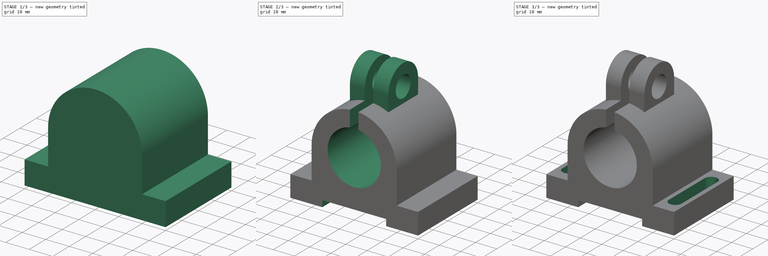
[diagram: build sequence overview — one tinted view per stage of 3, left to right]
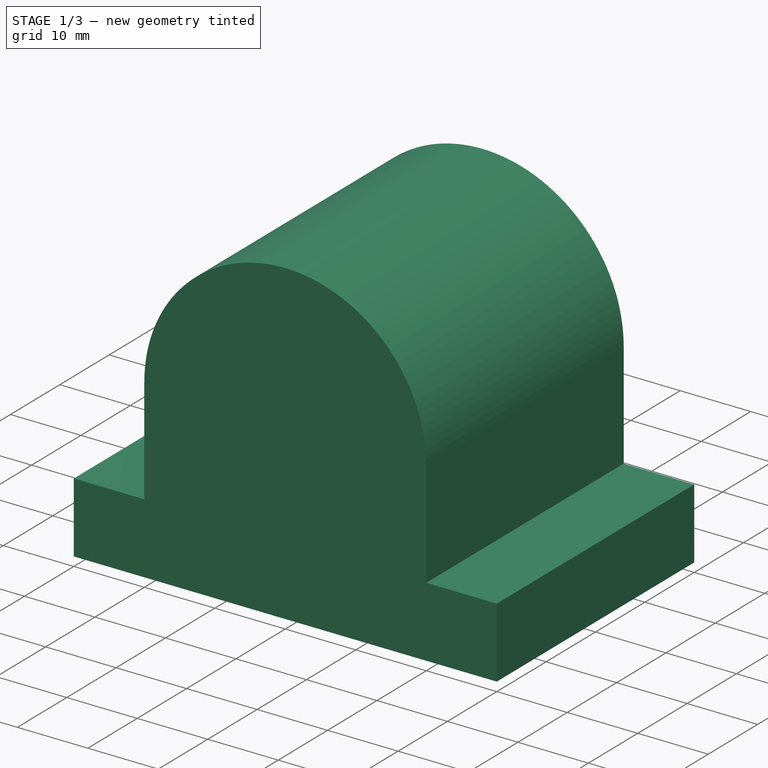
[diagram: stage 1 of 3 — iso view after this stage's code; geometry added in this stage tinted green]
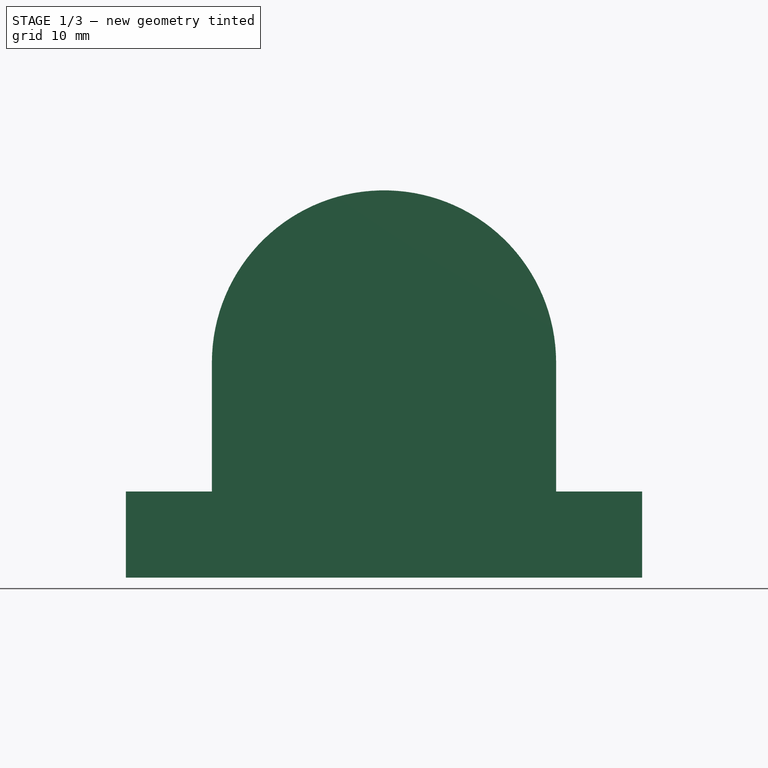
[diagram: stage 1 of 3 — front view after this stage's code; geometry added in this stage tinted green]
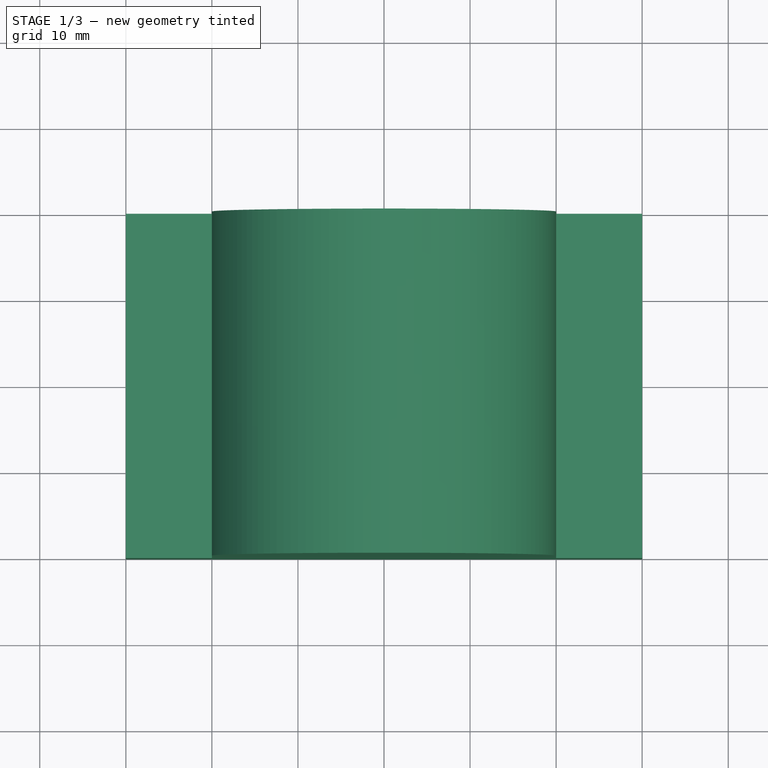
[diagram: stage 1 of 3 — top view after this stage's code; geometry added in this stage tinted green]
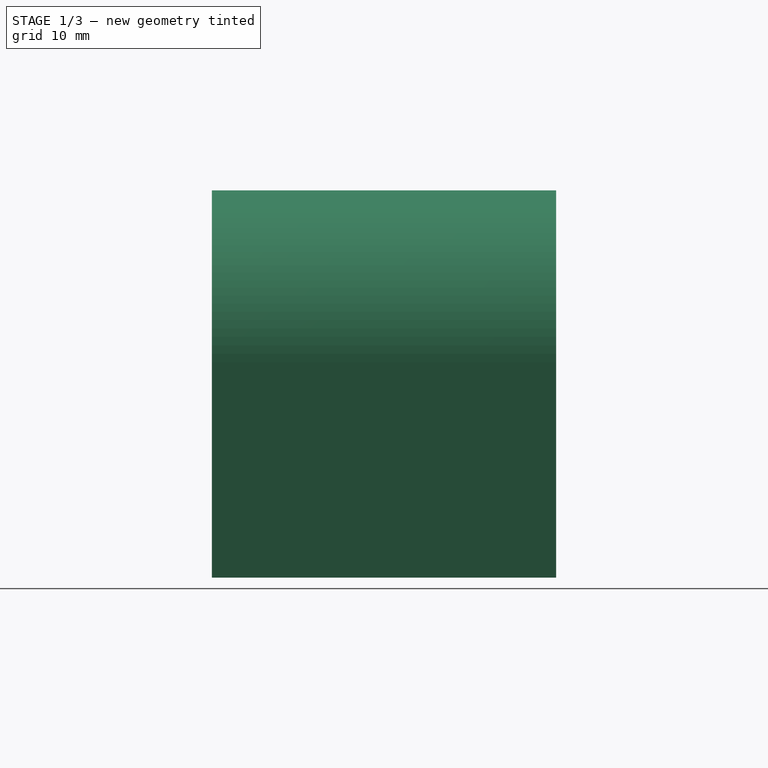
[diagram: stage 1 of 3 — right view after this stage's code; geometry added in this stage tinted green]
FCSTD DOCUMENT  (FreeCAD 0.18R4 (GitTag))
Label: project2
License: All rights reserved
LicenseURL: http://en.wikipedia.org/wiki/All_rights_reserved
objects: Sketcher::SketchObject×6, PartDesign::Pad×3, PartDesign::Pocket×3, PartDesign::Mirrored×1, PartDesign::Body×1
note: 20 computed .brp shape members not serialized (recipe doc carries the construction recipe); baked Part::Feature solids carry a one-line shape summary decoded from their .brp

FEATURE [Sketcher::SketchObject] Sketch
  MapMode = 5
  Support = -> [XY_Plane]
  sketch-geometry (4):
    g0: LineSegment StartX=-30 StartY=20 StartZ=0 EndX=30 EndY=20 EndZ=0
    g1: LineSegment StartX=30 StartY=20 StartZ=0 EndX=30 EndY=-20 EndZ=0
    g2: LineSegment StartX=30 StartY=-20 StartZ=0 EndX=-30 EndY=-20 EndZ=0
    g3: LineSegment StartX=-30 StartY=-20 StartZ=0 EndX=-30 EndY=20 EndZ=0
  constraints (10):
    c: Coincident(g0,g1)
    c: Coincident(g1,g2)
    c: Coincident(g2,g3)
    c: Coincident(g3,g0)
    c: Horizontal(g2)
    c: Vertical(g1)
    c: DistanceX(g0,g0) = 60
    c: DistanceY(g1,g0) = 40
    c: Symmetric(g0,g0,g-2)
    c: Symmetric(g2,g0,g-1)
FEATURE [PartDesign::Pad] Pad
  Length = 10
  Length2 = 100
  Profile = -> Sketch
  Type = 0
FEATURE [Sketcher::SketchObject] Sketch001
  MapMode = 5
  Placement = pos=(0,0,0) rot=(1,0,0;1.5708rad)
  Support = -> [XZ_Plane]
  sketch-geometry (4):
    g0: LineSegment StartX=-20 StartY=10 StartZ=0 EndX=-20 EndY=25 EndZ=0
    g1: ArcOfCircle CenterX=0 CenterY=25 CenterZ=0 NormalX=0 NormalY=0 NormalZ=1 AngleXU=0 Radius=20 StartAngle=4e-16 EndAngle=3.14159
    g2: LineSegment StartX=20 StartY=25 StartZ=0 EndX=20 EndY=10 EndZ=0
    g3: LineSegment StartX=-20 StartY=10 StartZ=0 EndX=20 EndY=10 EndZ=0
  constraints (11):
    c: Vertical(g0)
    c: Vertical(g2)
    c: Tangent(g0,g1) = 1.5708
    c: PointOnObject(g1,g-2)
    c: Tangent(g1,g2) = 1.5708
    c: Coincident(g2,g3)
    c: Coincident(g0,g3)
    c: Horizontal(g3)
    c: Radius(g1) = 20
    c: DistanceY(g2,g2) = 15
    c: DistanceY(g-1,g1) = 25
FEATURE [PartDesign::Pad] Pad001
  BaseFeature = -> Pad
  Length = 40
  Length2 = 100
  Midplane = true
  Profile = -> Sketch001
  Type = 0
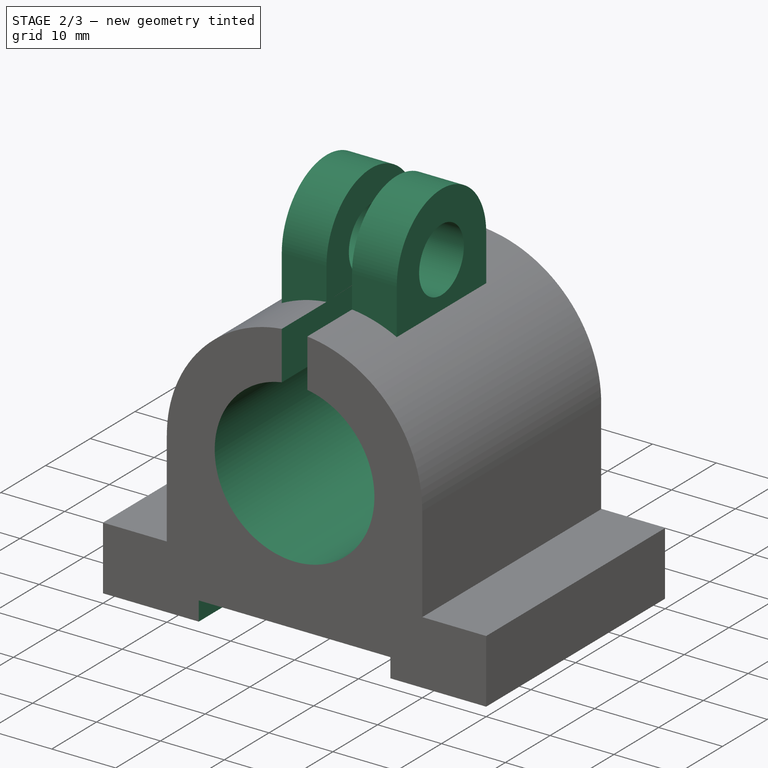
[diagram: stage 2 of 3 — iso view after this stage's code; geometry added in this stage tinted green]
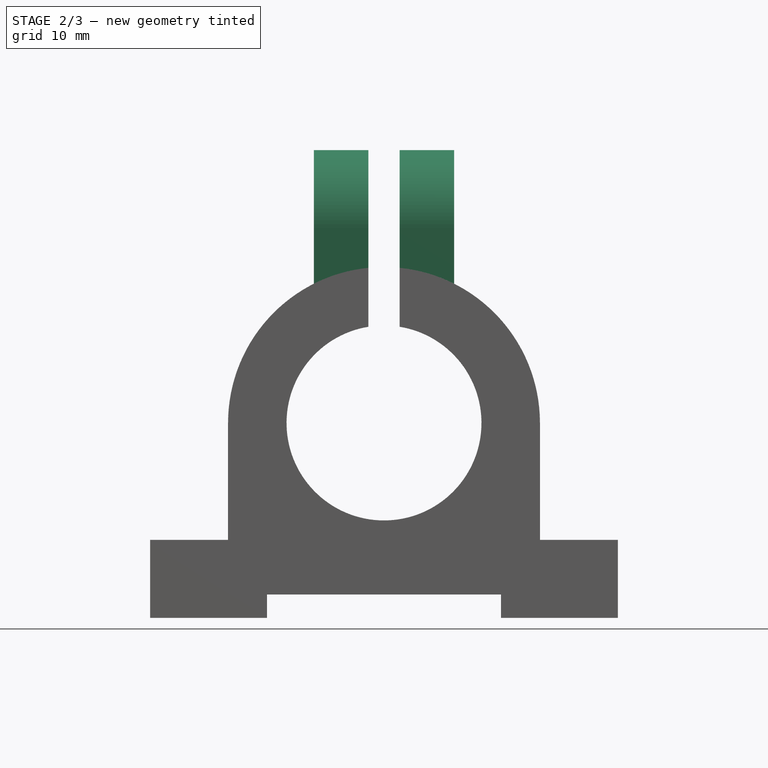
[diagram: stage 2 of 3 — front view after this stage's code; geometry added in this stage tinted green]
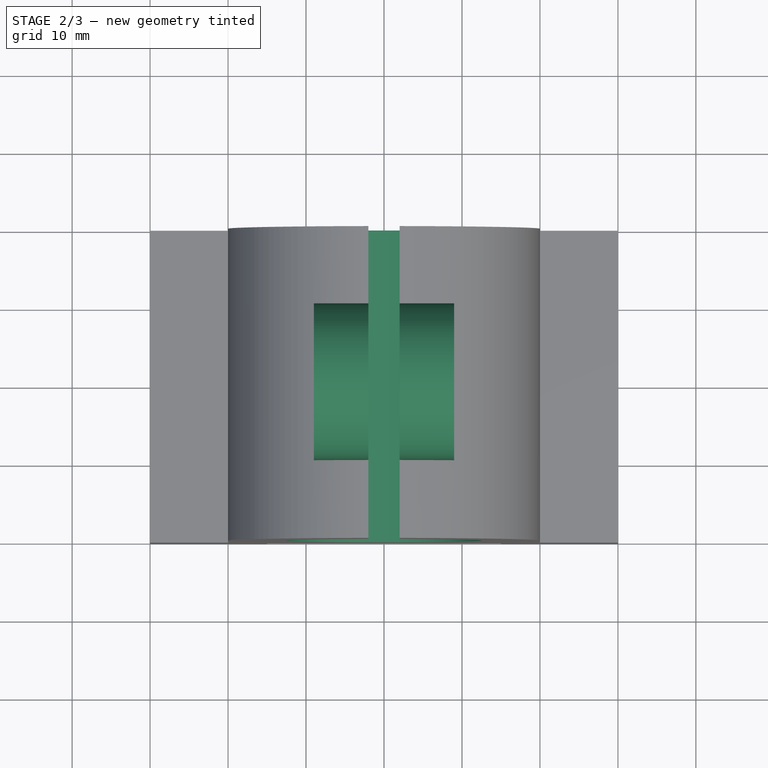
[diagram: stage 2 of 3 — top view after this stage's code; geometry added in this stage tinted green]
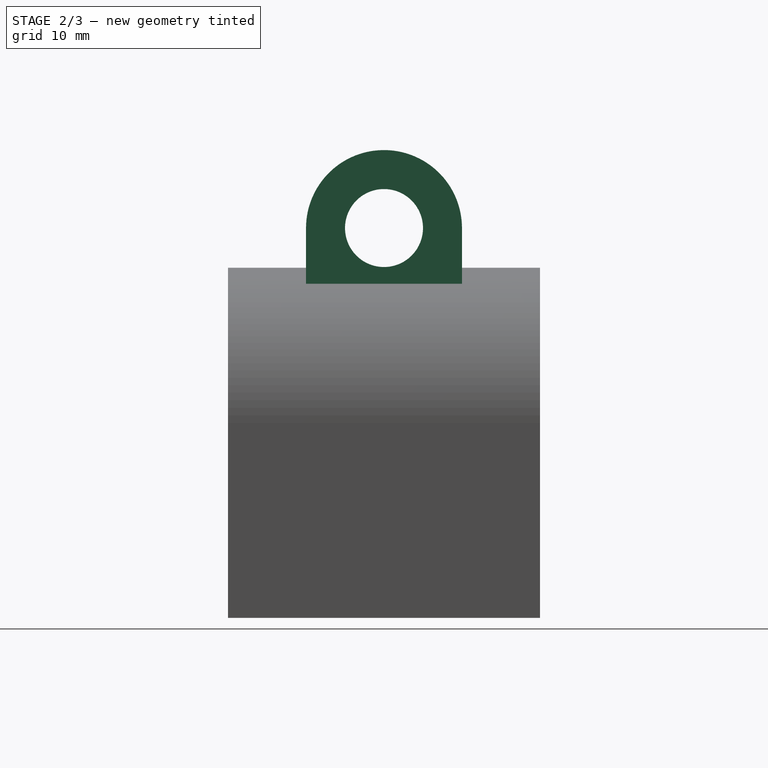
[diagram: stage 2 of 3 — right view after this stage's code; geometry added in this stage tinted green]
FEATURE [Sketcher::SketchObject] Sketch002
  MapMode = 5
  Placement = pos=(0,0,0) rot=(0.57735,0.57735,0.57735;2.0944rad)
  Support = -> [YZ_Plane]
  sketch-geometry (5):
    g0: LineSegment StartX=-10 StartY=30 StartZ=0 EndX=-10 EndY=50 EndZ=0
    g1: ArcOfCircle CenterX=0 CenterY=50 CenterZ=0 NormalX=0 NormalY=0 NormalZ=1 AngleXU=0 Radius=10 StartAngle=6.28318 EndAngle=9.42478
    g2: LineSegment StartX=10 StartY=50 StartZ=0 EndX=10 EndY=30 EndZ=0
    g3: LineSegment StartX=10 StartY=30 StartZ=0 EndX=-10 EndY=30 EndZ=0
    g4: Circle CenterX=0 CenterY=50 CenterZ=0 NormalX=0 NormalY=0 NormalZ=1 AngleXU=0 Radius=5
  constraints (14):
    c: Tangent(g0,g1) = 1.5708
    c: Coincident(g1,g2)
    c: Coincident(g2,g3)
    c: Vertical(g0)
    c: Vertical(g2)
    c: Horizontal(g3)
    c: PointOnObject(g1,g-2)
    c: Coincident(g0,g3)
    c: Radius(g4) = 5
    c: Radius(g1) = 10
    c: DistanceY(g-1,g1) = 50
    c: Coincident(g4,g1)
    c: DistanceX(g3,g3) = 20
    c: DistanceY(g2,g2) = 20
FEATURE [PartDesign::Pad] Pad002
  BaseFeature = -> Pad001
  Length = 18
  Length2 = 100
  Midplane = true
  Profile = -> Sketch002
  Type = 0
FEATURE [Sketcher::SketchObject] Sketch003
  MapMode = 5
  Placement = pos=(0,0,0) rot=(1,0,0;1.5708rad)
  Support = -> [XZ_Plane]
  sketch-geometry (4):
    g0: ArcOfCircle CenterX=0 CenterY=25 CenterZ=0 NormalX=0 NormalY=0 NormalZ=1 AngleXU=0 Radius=12.5 StartAngle=1.73149 EndAngle=7.69329
    g1: LineSegment StartX=-2 StartY=70.819 StartZ=0 EndX=2 EndY=70.819 EndZ=0
    g2: LineSegment StartX=2 StartY=70.819 StartZ=0 EndX=2 EndY=37.339 EndZ=0
    g3: LineSegment StartX=-2 StartY=37.339 StartZ=0 EndX=-2 EndY=70.819 EndZ=0
  constraints (12):
    c: Diameter(g0) = 25
    c: PointOnObject(g0,g-2)
    c: DistanceY(g-1,g0) = 25
    c: Coincident(g1,g2)
    c: Coincident(g3,g1)
    c: Vertical(g2)
    c: Vertical(g3)
    c: DistanceX(g1,g1) = 4
    c: Coincident(g0,g3)
    c: Coincident(g0,g2)
    c: Symmetric(g1,g1,g-2)
    c: DistanceY(g3,g3) = 33.48
FEATURE [PartDesign::Pocket] Pocket
  BaseFeature = -> Pad002
  Length = 5
  Length2 = 100
  Midplane = true
  Profile = -> Sketch003
  Type = 1
FEATURE [Sketcher::SketchObject] Sketch004
  MapMode = 5
  Placement = pos=(0,0,0) rot=(1,0,0;1.5708rad)
  Support = -> [XZ_Plane]
  sketch-geometry (4):
    g0: LineSegment StartX=-15 StartY=0 StartZ=0 EndX=15 EndY=0 EndZ=0
    g1: LineSegment StartX=15 StartY=0 StartZ=0 EndX=15 EndY=3 EndZ=0
    g2: LineSegment StartX=15 StartY=3 StartZ=0 EndX=-15 EndY=3 EndZ=0
    g3: LineSegment StartX=-15 StartY=3 StartZ=0 EndX=-15 EndY=0 EndZ=0
  constraints (11):
    c: Coincident(g0,g1)
    c: Coincident(g1,g2)
    c: Coincident(g2,g3)
    c: Coincident(g3,g0)
    c: Horizontal(g0)
    c: Horizontal(g2)
    c: Vertical(g1)
    c: Vertical(g3)
    c: Symmetric(g0,g0,g-1)
    c: DistanceX(g2,g2) = 30
    c: DistanceY(g3,g3) = 3
FEATURE [PartDesign::Pocket] Pocket001
  BaseFeature = -> Pocket
  Length = 5
  Length2 = 100
  Midplane = true
  Profile = -> Sketch004
  Type = 1
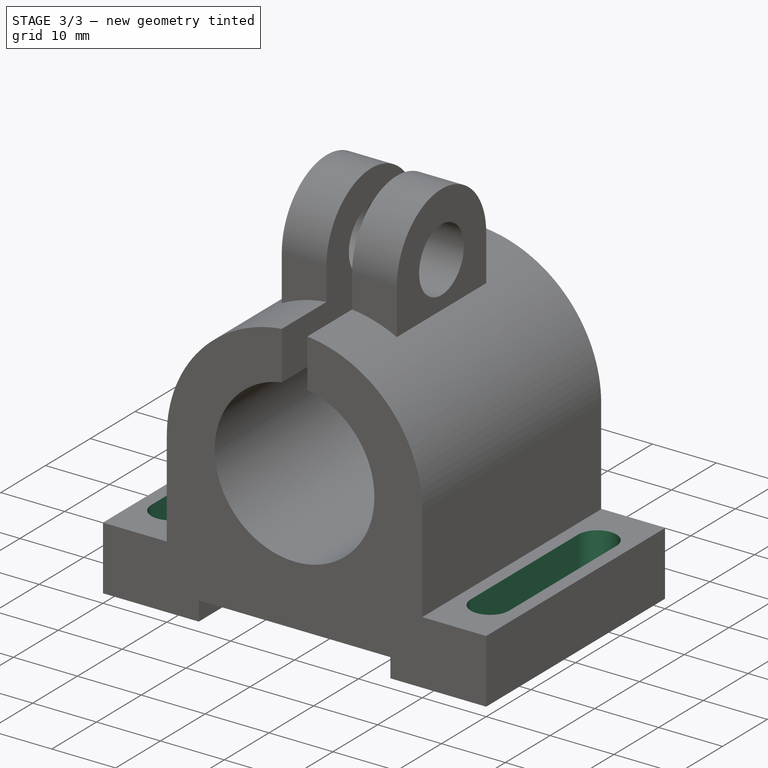
[diagram: stage 3 of 3 — iso view after this stage's code; geometry added in this stage tinted green]
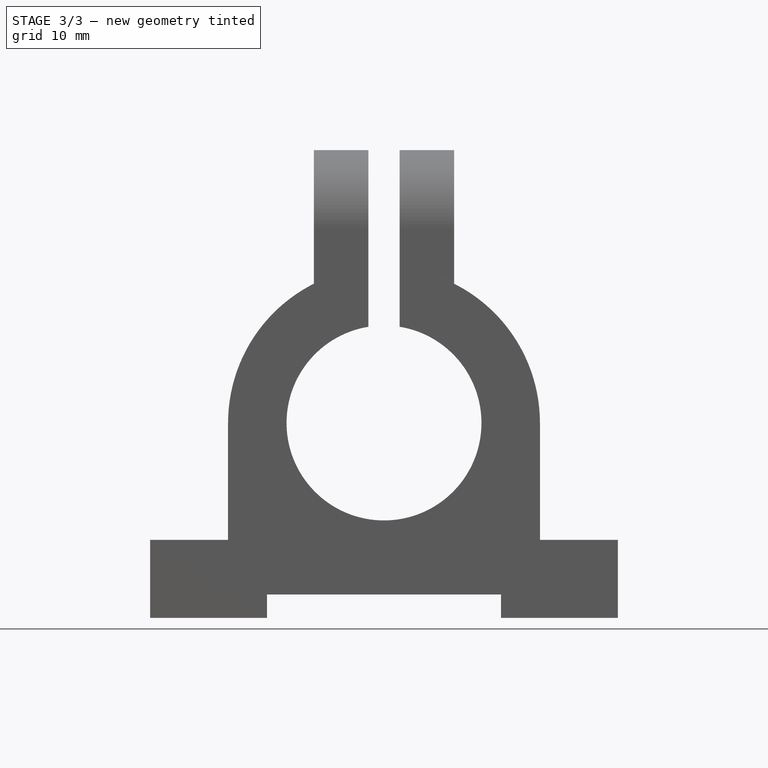
[diagram: stage 3 of 3 — front view after this stage's code; geometry added in this stage tinted green]
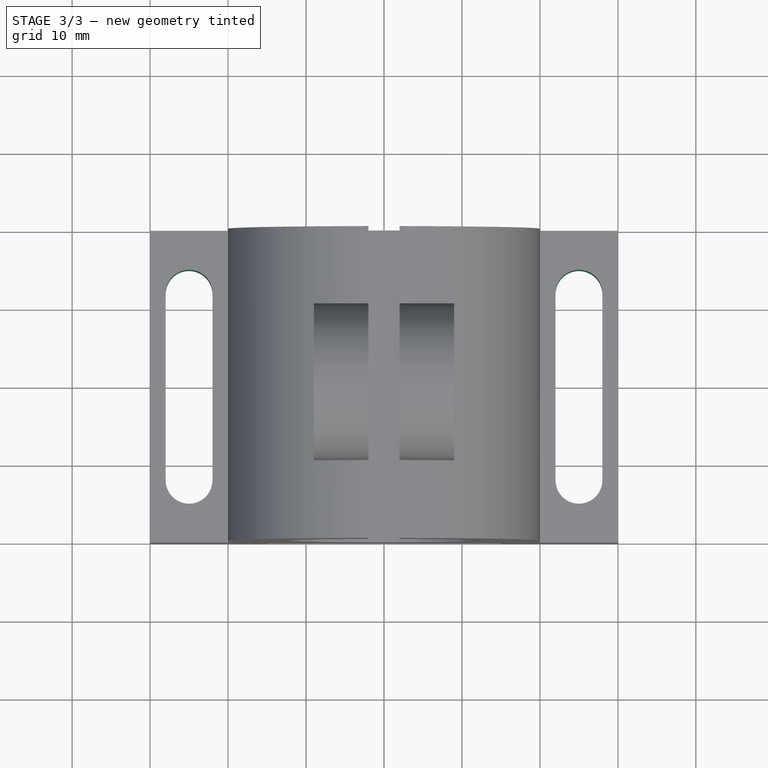
[diagram: stage 3 of 3 — top view after this stage's code; geometry added in this stage tinted green]
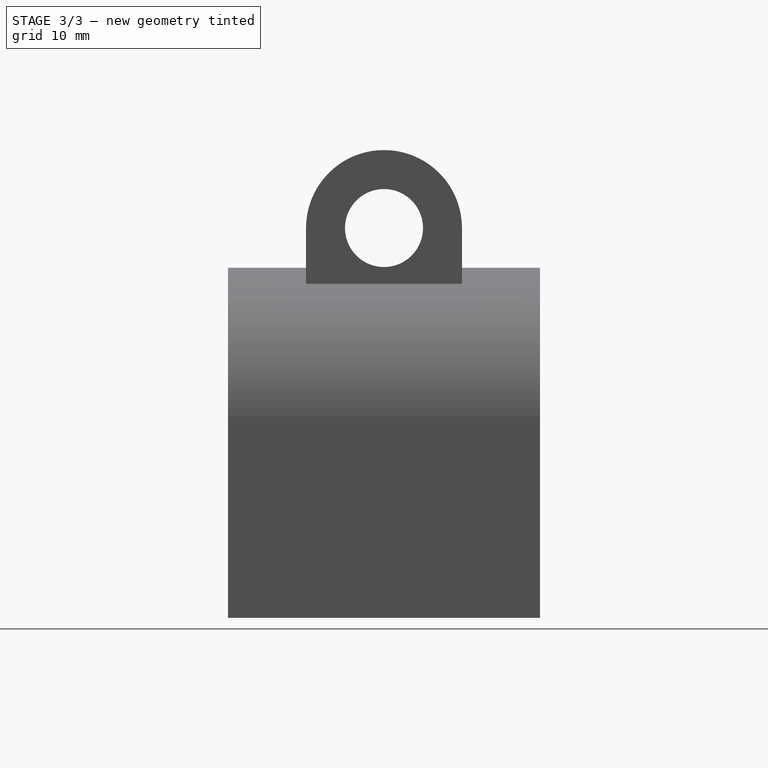
[diagram: stage 3 of 3 — right view after this stage's code; geometry added in this stage tinted green]
FEATURE [Sketcher::SketchObject] Sketch005
  MapMode = 5
  Support = -> [XY_Plane]
  sketch-geometry (4):
    g0: ArcOfCircle CenterX=25 CenterY=12 CenterZ=0 NormalX=0 NormalY=0 NormalZ=1 AngleXU=0 Radius=3 StartAngle=3e-16 EndAngle=3.14159
    g1: ArcOfCircle CenterX=25 CenterY=-12 CenterZ=0 NormalX=0 NormalY=0 NormalZ=1 AngleXU=0 Radius=3 StartAngle=3.14159 EndAngle=6.28319
    g2: LineSegment StartX=22 StartY=12 StartZ=0 EndX=22 EndY=-12 EndZ=0
    g3: LineSegment StartX=28 StartY=12 StartZ=0 EndX=28 EndY=-12 EndZ=0
  constraints (9):
    c: Tangent(g0,g3) = 1.5708
    c: Tangent(g0,g2) = -1.5708
    c: Tangent(g2,g1) = -1.5708
    c: Tangent(g3,g1) = 1.5708
    c: Equal(g0,g1)
    c: DistanceY(g3,g3) = 24
    c: Radius(g0) = 3
    c: Symmetric(g0,g1,g-1)
    c: DistanceX(g-2,g0) = 25
FEATURE [PartDesign::Pocket] Pocket002
  BaseFeature = -> Pocket001
  Length = 5
  Length2 = 100
  Midplane = true
  Profile = -> Sketch005
  Type = 1
FEATURE [PartDesign::Mirrored] Mirrored
  BaseFeature = -> Pocket002
  MirrorPlane = -> Sketch005 [V_Axis]
  Originals = -> [Pocket002]
FEATURE [PartDesign::Body] Body
  Group = -> [Sketch,Pad,Sketch001,Pad001,Sketch002,Pad002,Sketch003,Pocket,Sketch004,Pocket001,Sketch005,Pocket002,Mirrored]
  Origin = -> Origin
  Tip = -> Mirrored
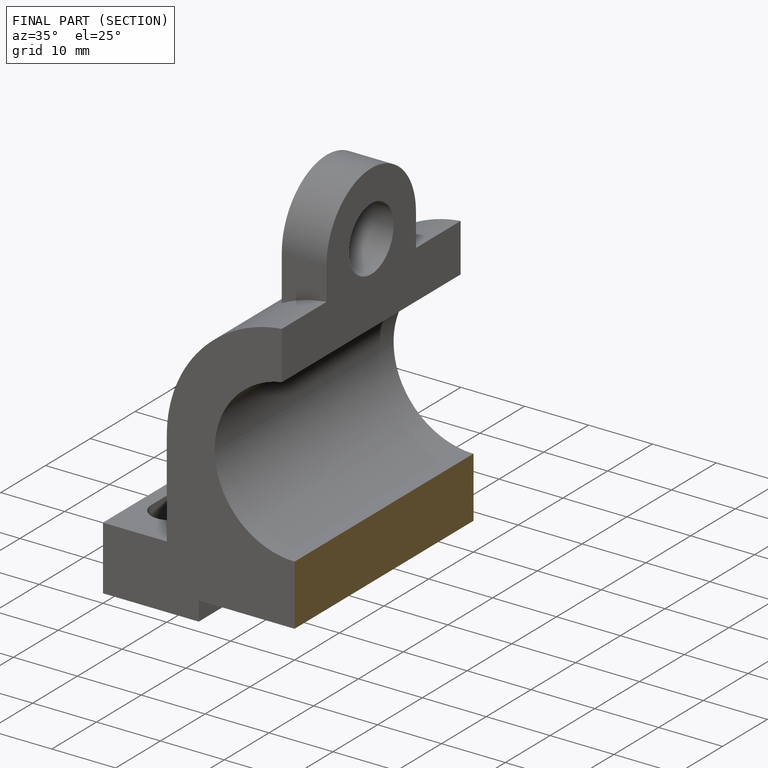
[diagram: finished part — half-section view (interior)]
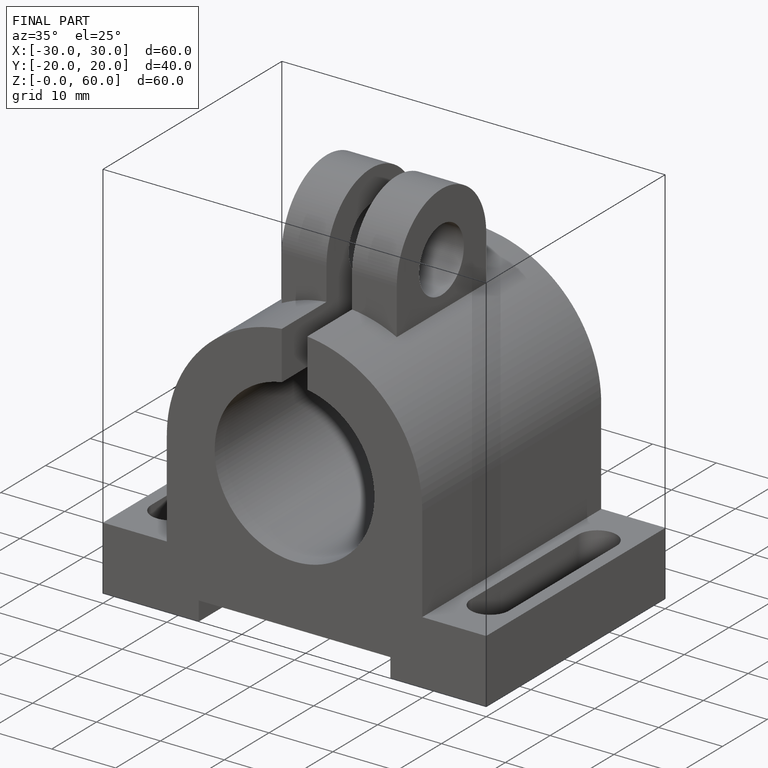
[diagram: finished part — iso view with bounding-box wireframe]
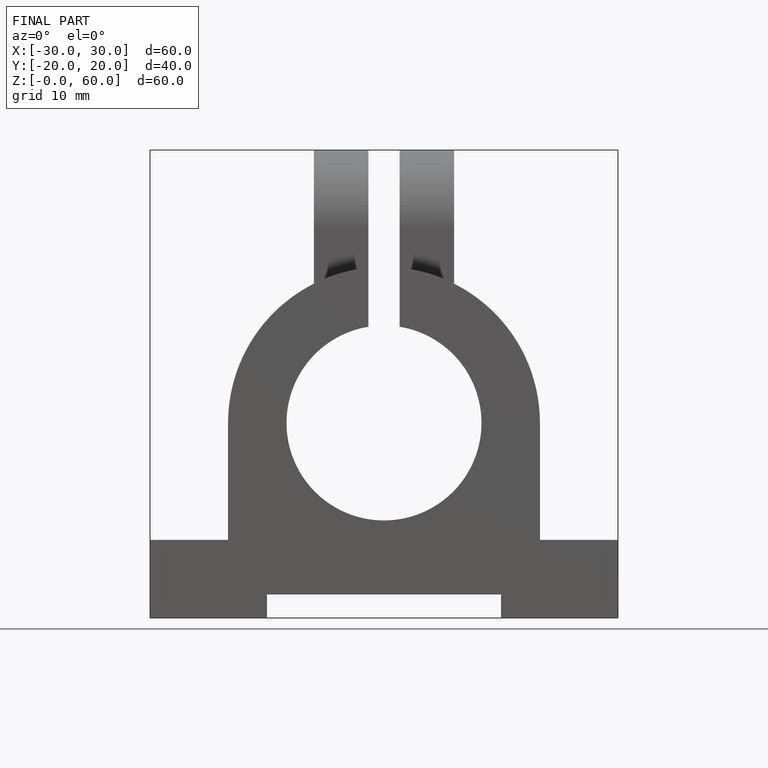
[diagram: finished part — front view with bounding-box wireframe]
